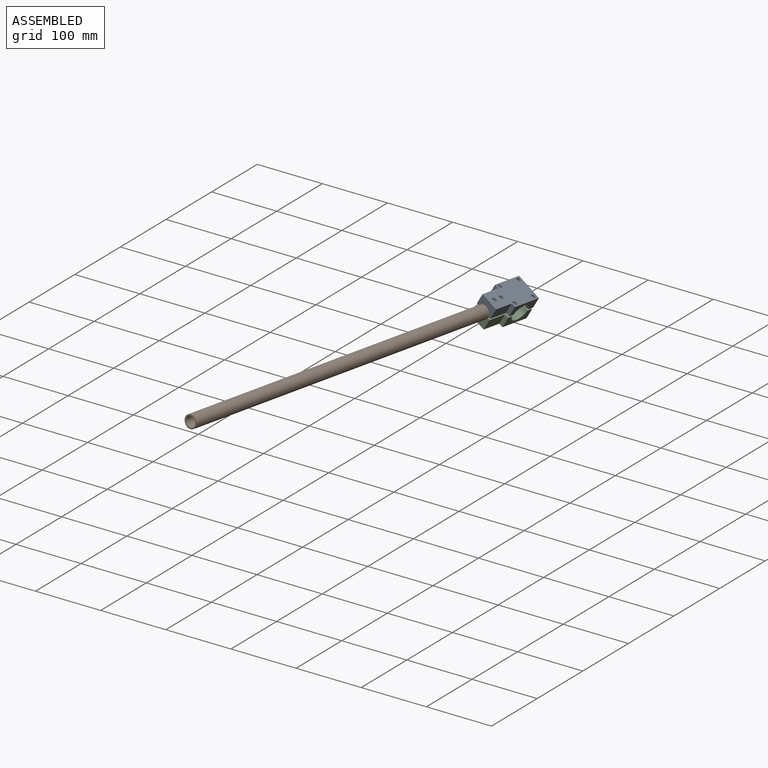
[diagram: assembled view]
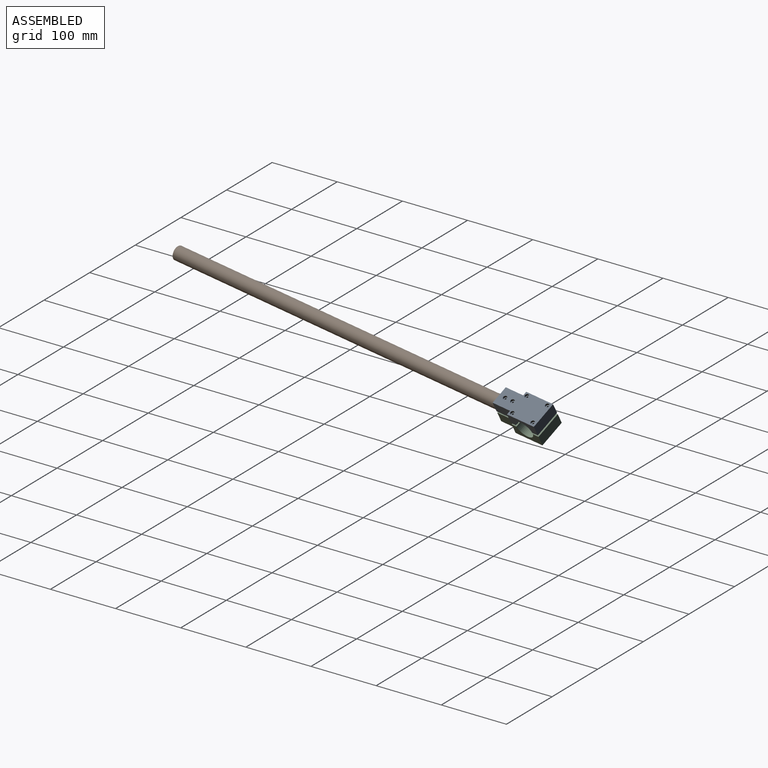
[diagram: assembled view, second angle]
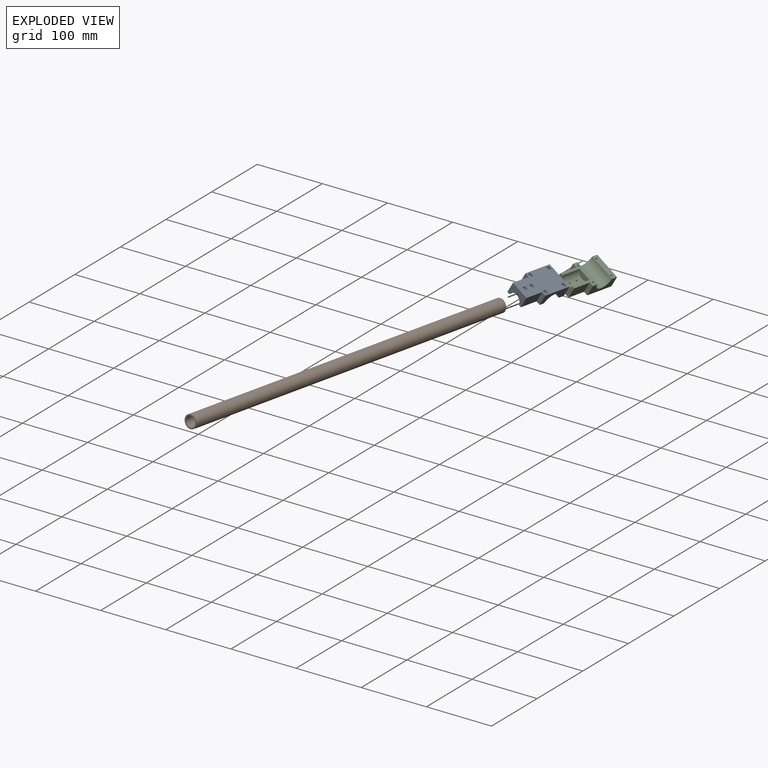
[diagram: exploded view]
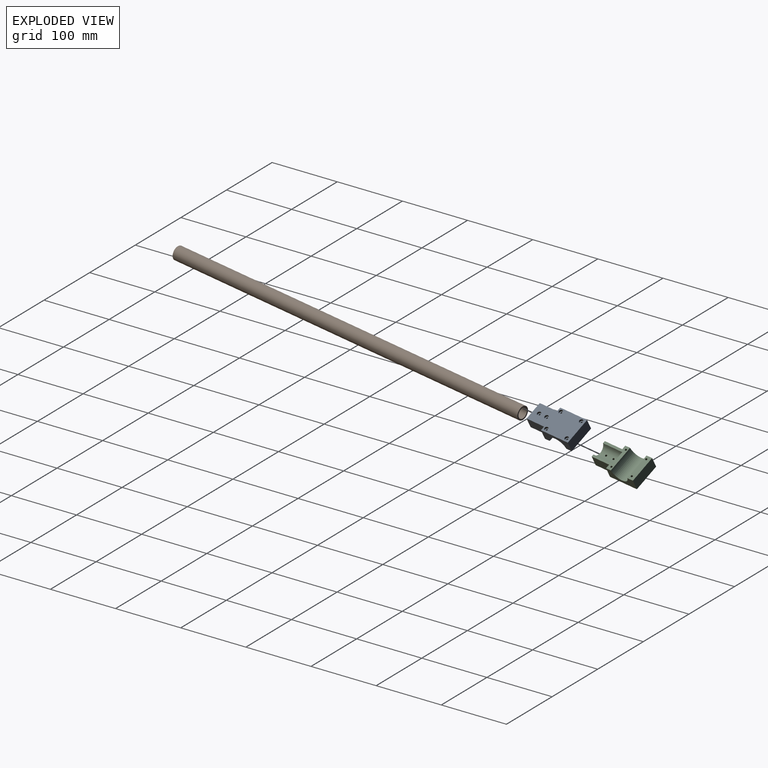
[diagram: exploded view, second angle]
ASSEMBLY  parts=3 mates=2
PART A: 32 faces, bbox 40x75x17.5 mm
  f0: cylinder r=10mm len=32.5mm, axis (0,1,0), area 909mm2, adj f4,f5,f6,f14,f17
  f1: plane 29.5x17.5mm, normal (1,0,0), area 516.3mm2, adj f2,f4,f5,f13
  f2: plane 75x40mm, normal (0,0,1), area 2456.3mm2, adj f1,f3,f5,f8,f10,f11,f12,f13
  f3: plane 29.5x17.5mm, normal (-1,0,0), area 516.3mm2, adj f2,f4,f5,f12
  f4: plane 40x37.66mm, normal (0,0,-1), area 475.5mm2, adj f0,f1,f3,f5,f6,f9,f10,f11
  f5: plane 27.32x17.5mm, normal (0,-1,0), area 350.9mm2, adj f0,f1,f2,f3,f4
  f6: plane 19.77x8.5mm, normal (0,-1,0), area 127.2mm2, adj f0,f4
  f7: plane 40x9.5mm, normal (0,0,-1), area 366mm2, adj f8,f9,f10,f11,f20,f23
  f8: plane 40x17.5mm, normal (0,1,0), area 700mm2, adj f2,f7,f10,f11
  f9: cylinder r=14mm len=40mm, axis (-1,0,0), area 1639.1mm2, adj f4,f7,f10,f11
  f10: plane 45.5x17.5mm, normal (1,0,0), area 530.3mm2, adj f2,f4,f7,f8,f9,f13
  f11: plane 45.5x17.5mm, normal (-1,0,0), area 530.3mm2, adj f2,f4,f7,f8,f9,f12
  f12: plane 17.5x6.34mm, normal (0,-1,0), area 110.9mm2, adj f2,f3,f4,f11
  f13: plane 17.5x6.34mm, normal (0,-1,0), area 110.9mm2, adj f1,f2,f4,f10
  f14: cylinder r=1.5mm len=6.11mm, axis (0,0,1), area 57.1mm2, adj f0,f15
  f15: plane 6x6mm, normal (0,0,1), area 21.2mm2, adj f14,f16
  f16: cylinder r=3mm len=6mm, axis (0,0,1), area 56.5mm2, adj f2,f15
  f17: cylinder r=1.5mm len=6.11mm, axis (0,0,1), area 57.1mm2, adj f0,f18
  f18: plane 6x6mm, normal (0,0,1), area 21.2mm2, adj f17,f19
  f19: cylinder r=3mm len=6mm, axis (0,0,1), area 56.5mm2, adj f2,f18
  f20: cylinder r=1.5mm len=14.5mm, axis (0,0,1), area 136.7mm2, adj f7,f21
  f21: plane 6x6mm, normal (0,0,1), area 21.2mm2, adj f20,f22
  f22: cylinder r=3mm len=6mm, axis (0,0,1), area 56.5mm2, adj f2,f21
  f23: cylinder r=1.5mm len=14.5mm, axis (0,0,1), area 136.7mm2, adj f7,f24
  f24: plane 6x6mm, normal (0,0,1), area 21.2mm2, adj f23,f25
  f25: cylinder r=3mm len=6mm, axis (0,0,1), area 56.5mm2, adj f2,f24
  f26: cylinder r=1.5mm len=14.5mm, axis (0,0,1), area 136.7mm2, adj f4,f27
  f27: plane 6x6mm, normal (0,0,1), area 21.2mm2, adj f26,f28
  f28: cylinder r=3mm len=6mm, axis (0,0,1), area 56.5mm2, adj f2,f27
  f29: cylinder r=1.5mm len=14.5mm, axis (0,0,1), area 136.7mm2, adj f4,f30
  f30: plane 6x6mm, normal (0,0,1), area 21.2mm2, adj f29,f31
  f31: cylinder r=3mm len=6mm, axis (0,0,1), area 56.5mm2, adj f2,f30
PART B: 4 faces, bbox 20x20x584.2 mm
  f0: cylinder r=7.94mm len=584.2mm, axis (0,0,-1), area 29135.7mm2, adj f2,f3
  f1: cylinder r=10mm len=584.2mm, axis (0,0,-1), area 36706.4mm2, adj f2,f3
  f2: plane 20x20mm, normal (0,0,1), area 116.2mm2, adj f0,f1
  f3: plane 20x20mm, normal (0,0,-1), area 116.2mm2, adj f0,f1
PART C: 32 faces, bbox 40x75x17.5 mm
  f0: cylinder r=10mm len=32.5mm, axis (0,1,0), area 909mm2, adj f4,f5,f6,f14,f17
  f1: plane 29.5x17.5mm, normal (1,0,0), area 516.3mm2, adj f2,f4,f5,f13
  f2: plane 75x40mm, normal (0,0,-1), area 2456.3mm2, adj f1,f3,f5,f8,f10,f11,f12,f13
  f3: plane 29.5x17.5mm, normal (-1,0,0), area 516.3mm2, adj f2,f4,f5,f12
  f4: plane 40x37.66mm, normal (0,0,1), area 475.5mm2, adj f0,f1,f3,f5,f6,f9,f10,f11
  f5: plane 27.32x17.5mm, normal (0,-1,0), area 350.9mm2, adj f0,f1,f2,f3,f4
  f6: plane 19.77x8.5mm, normal (0,-1,0), area 127.2mm2, adj f0,f4
  f7: plane 40x9.5mm, normal (0,0,1), area 366mm2, adj f8,f9,f10,f11,f20,f23
  f8: plane 40x17.5mm, normal (0,1,0), area 700mm2, adj f2,f7,f10,f11
  f9: cylinder r=14mm len=40mm, axis (-1,0,0), area 1639.1mm2, adj f4,f7,f10,f11
  f10: plane 45.5x17.5mm, normal (1,0,0), area 530.3mm2, adj f2,f4,f7,f8,f9,f13
  f11: plane 45.5x17.5mm, normal (-1,0,0), area 530.3mm2, adj f2,f4,f7,f8,f9,f12
  f12: plane 17.5x6.34mm, normal (0,-1,0), area 110.9mm2, adj f2,f3,f4,f11
  f13: plane 17.5x6.34mm, normal (0,-1,0), area 110.9mm2, adj f1,f2,f4,f10
  f14: cylinder r=1.5mm len=6.11mm, axis (0,0,-1), area 57.1mm2, adj f0,f15
  f15: plane 6x6mm, normal (0,0,-1), area 21.2mm2, adj f14,f16
  f16: cylinder r=3mm len=6mm, axis (0,0,-1), area 56.5mm2, adj f2,f15
  f17: cylinder r=1.5mm len=6.11mm, axis (0,0,-1), area 57.1mm2, adj f0,f18
  f18: plane 6x6mm, normal (0,0,-1), area 21.2mm2, adj f17,f19
  f19: cylinder r=3mm len=6mm, axis (0,0,-1), area 56.5mm2, adj f2,f18
  f20: cylinder r=1.5mm len=14.5mm, axis (0,0,-1), area 136.7mm2, adj f7,f21
  f21: plane 6x6mm, normal (0,0,-1), area 21.2mm2, adj f20,f22
  f22: cylinder r=3mm len=6mm, axis (0,0,-1), area 56.5mm2, adj f2,f21
  f23: cylinder r=1.5mm len=14.5mm, axis (0,0,-1), area 136.7mm2, adj f7,f24
  f24: plane 6x6mm, normal (0,0,-1), area 21.2mm2, adj f23,f25
  f25: cylinder r=3mm len=6mm, axis (0,0,-1), area 56.5mm2, adj f2,f24
  f26: cylinder r=1.5mm len=14.5mm, axis (0,0,-1), area 136.7mm2, adj f4,f27
  f27: plane 6x6mm, normal (0,0,-1), area 21.2mm2, adj f26,f28
  f28: cylinder r=3mm len=6mm, axis (0,0,-1), area 56.5mm2, adj f2,f27
  f29: cylinder r=1.5mm len=14.5mm, axis (0,0,-1), area 136.7mm2, adj f4,f30
  f30: plane 6x6mm, normal (0,0,-1), area 21.2mm2, adj f29,f31
  f31: cylinder r=3mm len=6mm, axis (0,0,-1), area 56.5mm2, adj f2,f30
PLACE A rot(axis=(-0.07,0.97,-0.25),31deg) t=(-364.02,-71.7,177.13)mm
PLACE B rot(axis=(0.93,0.19,-0.32),92.1deg) t=(-385.99,-153.92,-312.45)mm
PLACE C rot(axis=(-0.07,0.97,-0.25),31deg) t=(-364.02,-71.7,177.13)mm
MATE fastened B.f0 <-> A.f0  axis (0.12,0.99,-0.07) through (-366.52,-71.7,172.8)mm
MATE fastened B.f0 <-> C.f0  axis (0.12,0.99,-0.07) through (-366.52,-71.7,172.8)mm
